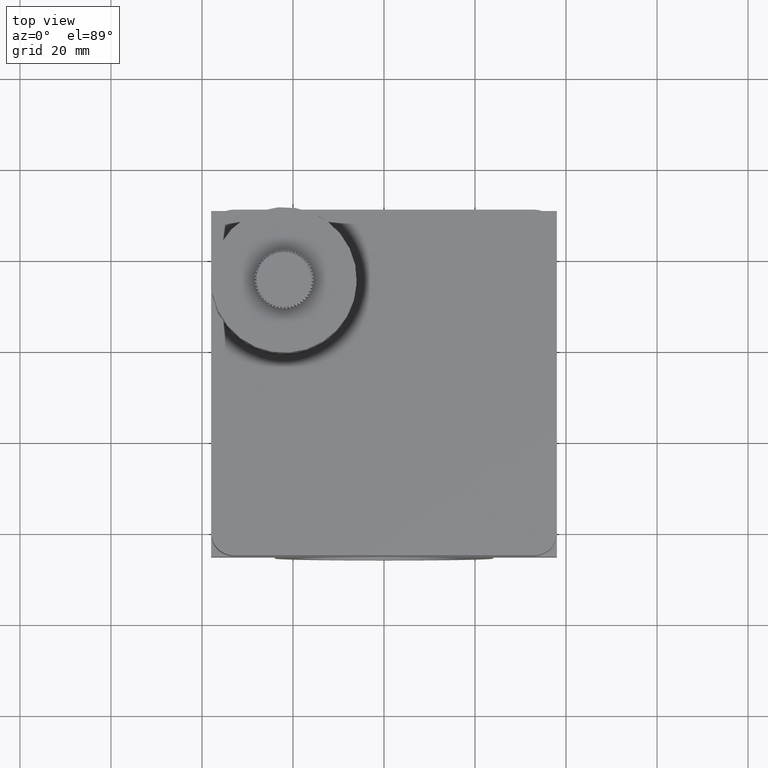
[diagram: clean part render]
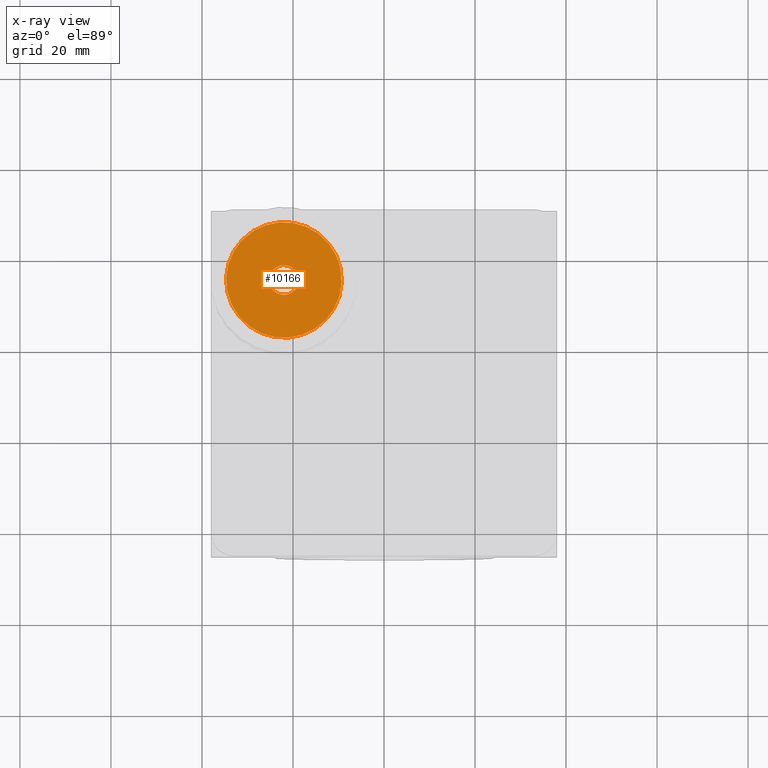
[diagram: x-ray — body ghosted, one internal face saturated and labeled with its STEP entity id]
A machine part, top view, then the same camera in x-ray: the body is ghosted and one INTERNAL B-rep face — a face not visible from any outside direction — is saturated and labeled: STEP entity #10166.
In plain terms, the highlighted planar face has unit normal (0, 0, -1).
Its self-contained STEP definition (entity closure, byte-faithful):
#490 = AXIS2_PLACEMENT_3D ( 'NONE', #3037, #9808, #1156 ) ;
#810 = VERTEX_POINT ( 'NONE', #5911 ) ;
#845 = ORIENTED_EDGE ( 'NONE', *, *, #10938, .F. ) ;
#949 = AXIS2_PLACEMENT_3D ( 'NONE', #10081, #1688, #11170 ) ;
#992 = EDGE_LOOP ( 'NONE', ( #845, #11559 ) ) ;
#1156 = DIRECTION ( 'NONE',  ( -0.8663474276109699400, 0.4994418231104151300, 0.0000000000000000000 ) ) ;
#1355 = CIRCLE ( 'NONE', #6513, 3.250000000000001300 ) ;
#1688 = DIRECTION ( 'NONE',  ( 3.656030264494998800E-016, 3.229622632768960300E-018, -1.000000000000000000 ) ) ;
#1706 = DIRECTION ( 'NONE',  ( 3.656030264494998800E-016, 3.229622632768960300E-018, -1.000000000000000000 ) ) ;
#1814 = EDGE_CURVE ( 'NONE', #3900, #11287, #6712, .T. ) ;
#1837 = EDGE_CURVE ( 'NONE', #11287, #3900, #10315, .T. ) ;
#2409 = DIRECTION ( 'NONE',  ( 3.656030264494996300E-016, 3.229622632769135600E-018, -1.000000000000000000 ) ) ;
#2805 = ORIENTED_EDGE ( 'NONE', *, *, #1837, .T. ) ;
#3037 = CARTESIAN_POINT ( 'NONE',  ( -21.99999999999994300, 294.0000000000000600, 70.50000000000000000 ) ) ;
#3413 = CARTESIAN_POINT ( 'NONE',  ( -21.99999999999994300, 294.0000000000000600, 70.50000000000000000 ) ) ;
#3900 = VERTEX_POINT ( 'NONE', #10394 ) ;
#3905 = CARTESIAN_POINT ( 'NONE',  ( -24.81562913973559900, 295.6231859251088800, 70.50000000000000000 ) ) ;
#4164 = FACE_BOUND ( 'NONE', #992, .T. ) ;
#4648 = CIRCLE ( 'NONE', #490, 3.250000000000001300 ) ;
#5220 = DIRECTION ( 'NONE',  ( -0.8663474276109701700, 0.4994418231104146300, -3.151262328756406200E-016 ) ) ;
#5667 = CARTESIAN_POINT ( 'NONE',  ( -10.99738766934062500, 287.6570888464977400, 70.50000000000000000 ) ) ;
#5911 = CARTESIAN_POINT ( 'NONE',  ( -19.18437086026429100, 292.3768140748911700, 70.50000000000000000 ) ) ;
#6106 = AXIS2_PLACEMENT_3D ( 'NONE', #6256, #2409, #5220 ) ;
#6256 = CARTESIAN_POINT ( 'NONE',  ( -21.99999999999994300, 294.0000000000000600, 70.50000000000000000 ) ) ;
#6513 = AXIS2_PLACEMENT_3D ( 'NONE', #12175, #1706, #8391 ) ;
#6712 = CIRCLE ( 'NONE', #949, 12.69999999999999600 ) ;
#6833 = VERTEX_POINT ( 'NONE', #3905 ) ;
#7409 = EDGE_LOOP ( 'NONE', ( #8657, #2805 ) ) ;
#8391 = DIRECTION ( 'NONE',  ( -0.8663474276109699400, 0.4994418231104151300, 0.0000000000000000000 ) ) ;
#8476 = EDGE_CURVE ( 'NONE', #810, #6833, #4648, .T. ) ;
#8657 = ORIENTED_EDGE ( 'NONE', *, *, #1814, .T. ) ;
#9808 = DIRECTION ( 'NONE',  ( 3.656030264494998800E-016, 3.229622632768960300E-018, -1.000000000000000000 ) ) ;
#10008 = AXIS2_PLACEMENT_3D ( 'NONE', #3413, #10128, #11079 ) ;
#10081 = CARTESIAN_POINT ( 'NONE',  ( -21.99999999999994300, 294.0000000000000600, 70.50000000000000000 ) ) ;
#10128 = DIRECTION ( 'NONE',  ( 3.656030264494998800E-016, 3.229622632768960300E-018, -1.000000000000000000 ) ) ;
#10166 = ADVANCED_FACE ( 'NONE', ( #4164, #11225 ), #12019, .T. ) ;
#10315 = CIRCLE ( 'NONE', #10008, 12.69999999999999600 ) ;
#10394 = CARTESIAN_POINT ( 'NONE',  ( -33.00261233065926100, 300.3429111535023100, 70.50000000000000000 ) ) ;
#10938 = EDGE_CURVE ( 'NONE', #6833, #810, #1355, .T. ) ;
#11079 = DIRECTION ( 'NONE',  ( -0.8663474276109699400, 0.4994418231104153500, 0.0000000000000000000 ) ) ;
#11170 = DIRECTION ( 'NONE',  ( -0.8663474276109699400, 0.4994418231104153500, 0.0000000000000000000 ) ) ;
#11225 = FACE_OUTER_BOUND ( 'NONE', #7409, .T. ) ;
#11287 = VERTEX_POINT ( 'NONE', #5667 ) ;
#11559 = ORIENTED_EDGE ( 'NONE', *, *, #8476, .F. ) ;
#12019 = PLANE ( 'NONE',  #6106 ) ;
#12175 = CARTESIAN_POINT ( 'NONE',  ( -21.99999999999994300, 294.0000000000000600, 70.50000000000000000 ) ) ;